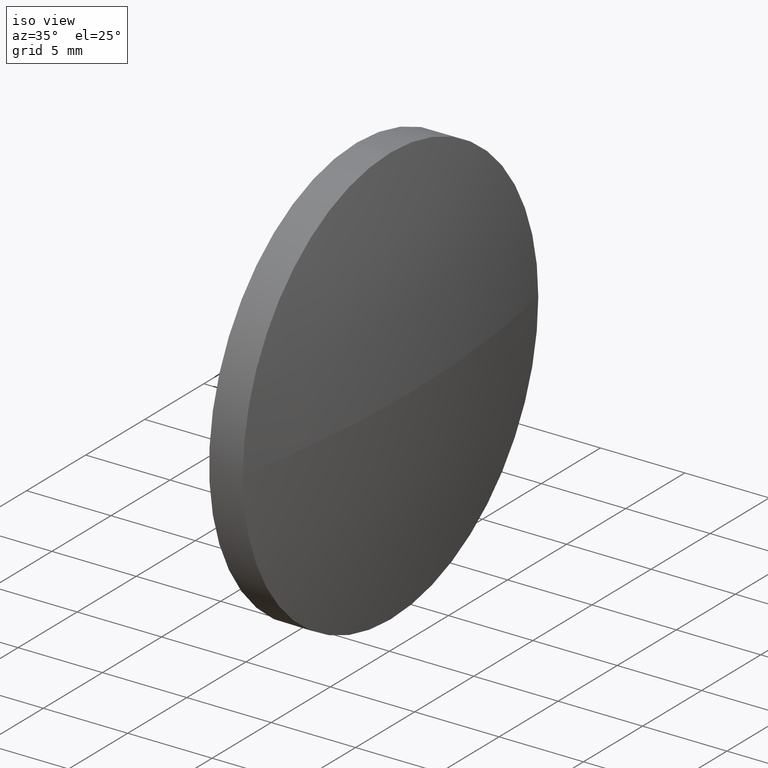
[diagram: clean part render]
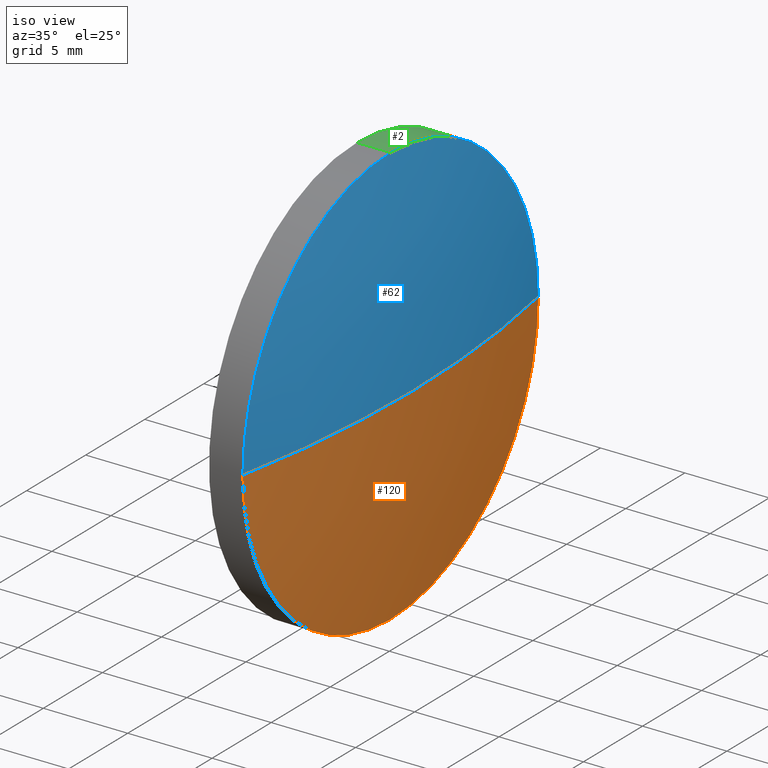
[diagram: same view with three faces highlighted in distinct colors, each labeled with its STEP entity id]
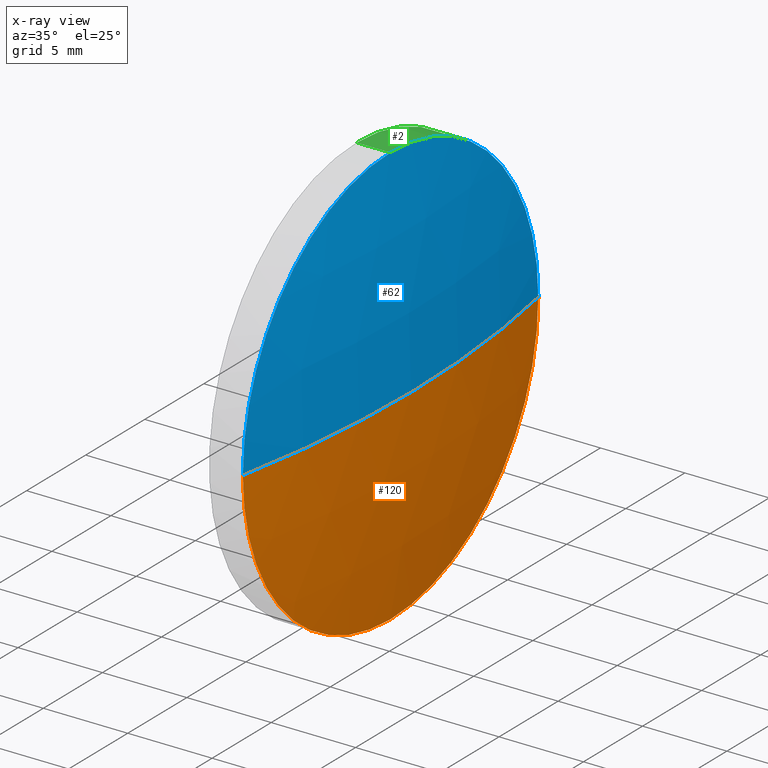
[diagram: x-ray of the same camera — body ghosted, the three highlighted faces saturated]
A machine part, iso view with three faces highlighted in distinct colors.
The next image is the same camera in x-ray (body ghosted, the three faces saturated) — at least one of them is partly hidden behind the body in this view.
Their STEP definitions:

[orange] entity #120 — the highlighted spherical surface has radius 64.6469 mm.
#5 = CARTESIAN_POINT ( 'NONE',  ( 448.6061647457008200, 82.09384113862540700, 0.0000000000000000000 ) ) ;
#8 = ORIENTED_EDGE ( 'NONE', *, *, #147, .F. ) ;
#12 = FACE_OUTER_BOUND ( 'NONE', #30, .T. ) ;
#18 = DIRECTION ( 'NONE',  ( 0.0000000000000000000, 0.0000000000000000000, 1.000000000000000000 ) ) ;
#19 = AXIS2_PLACEMENT_3D ( 'NONE', #138, #47, #153 ) ;
#20 = CIRCLE ( 'NONE', #133, 64.64688524590202700 ) ;
#26 = CARTESIAN_POINT ( 'NONE',  ( 385.1792794997987800, 82.09384113862537900, 0.0000000000000000000 ) ) ;
#29 = CIRCLE ( 'NONE', #130, 12.50000000000001100 ) ;
#30 = EDGE_LOOP ( 'NONE', ( #164, #74, #118, #8 ) ) ;
#38 = VERTEX_POINT ( 'NONE', #106 ) ;
#47 = DIRECTION ( 'NONE',  ( -0.0000000000000000000, 0.0000000000000000000, 1.000000000000000000 ) ) ;
#52 = SPHERICAL_SURFACE ( 'NONE', #99, 64.64688524590201300 ) ;
#53 = EDGE_CURVE ( 'NONE', #155, #127, #104, .T. ) ;
#69 = DIRECTION ( 'NONE',  ( -1.000000000000000000, -0.0000000000000000000, -0.0000000000000000000 ) ) ;
#70 = CARTESIAN_POINT ( 'NONE',  ( 385.1792794997987800, 82.09384113862537900, 0.0000000000000000000 ) ) ;
#71 = DIRECTION ( 'NONE',  ( 0.0000000000000000000, 0.0000000000000000000, 1.000000000000000000 ) ) ;
#74 = ORIENTED_EDGE ( 'NONE', *, *, #81, .T. ) ;
#77 = CARTESIAN_POINT ( 'NONE',  ( 449.8261647457007900, 82.09384113862537900, 0.0000000000000000000 ) ) ;
#80 = VERTEX_POINT ( 'NONE', #86 ) ;
#81 = EDGE_CURVE ( 'NONE', #155, #38, #20, .T. ) ;
#83 = DIRECTION ( 'NONE',  ( 0.0000000000000000000, 1.000000000000000000, 1.224646799147353000E-016 ) ) ;
#86 = CARTESIAN_POINT ( 'NONE',  ( 448.6061647457008200, 82.09384113862540700, -12.50000000000001100 ) ) ;
#87 = AXIS2_PLACEMENT_3D ( 'NONE', #184, #69, #71 ) ;
#94 = DIRECTION ( 'NONE',  ( 0.0000000000000000000, 1.000000000000000000, 0.0000000000000000000 ) ) ;
#99 = AXIS2_PLACEMENT_3D ( 'NONE', #26, #163, #94 ) ;
#103 = DIRECTION ( 'NONE',  ( -1.000000000000000000, -0.0000000000000000000, -0.0000000000000000000 ) ) ;
#104 = CIRCLE ( 'NONE', #19, 64.64688524590201300 ) ;
#106 = CARTESIAN_POINT ( 'NONE',  ( 448.6061647457008200, 69.59384113862536500, -1.530808498934193100E-015 ) ) ;
#118 = ORIENTED_EDGE ( 'NONE', *, *, #174, .F. ) ;
#120 = ADVANCED_FACE ( 'NONE', ( #12 ), #52, .T. ) ;
#127 = VERTEX_POINT ( 'NONE', #145 ) ;
#130 = AXIS2_PLACEMENT_3D ( 'NONE', #5, #103, #18 ) ;
#133 = AXIS2_PLACEMENT_3D ( 'NONE', #70, #170, #83 ) ;
#138 = CARTESIAN_POINT ( 'NONE',  ( 385.1792794997987800, 82.09384113862537900, 0.0000000000000000000 ) ) ;
#145 = CARTESIAN_POINT ( 'NONE',  ( 448.6061647457008200, 94.59384113862542200, 0.0000000000000000000 ) ) ;
#147 = EDGE_CURVE ( 'NONE', #127, #80, #29, .T. ) ;
#150 = CIRCLE ( 'NONE', #87, 12.50000000000001100 ) ;
#153 = DIRECTION ( 'NONE',  ( 1.000000000000000000, 0.0000000000000000000, 0.0000000000000000000 ) ) ;
#155 = VERTEX_POINT ( 'NONE', #77 ) ;
#163 = DIRECTION ( 'NONE',  ( -0.0000000000000000000, 0.0000000000000000000, -1.000000000000000000 ) ) ;
#164 = ORIENTED_EDGE ( 'NONE', *, *, #53, .F. ) ;
#170 = DIRECTION ( 'NONE',  ( 0.0000000000000000000, 1.224646799147353200E-016, -1.000000000000000000 ) ) ;
#174 = EDGE_CURVE ( 'NONE', #80, #38, #150, .T. ) ;
#184 = CARTESIAN_POINT ( 'NONE',  ( 448.6061647457008200, 82.09384113862540700, 0.0000000000000000000 ) ) ;

[blue] entity #62 — the highlighted spherical surface has radius 64.6469 mm.
#9 = SPHERICAL_SURFACE ( 'NONE', #162, 64.64688524590201300 ) ;
#19 = AXIS2_PLACEMENT_3D ( 'NONE', #138, #47, #153 ) ;
#20 = CIRCLE ( 'NONE', #133, 64.64688524590202700 ) ;
#21 = DIRECTION ( 'NONE',  ( -0.0000000000000000000, 0.0000000000000000000, -1.000000000000000000 ) ) ;
#22 = AXIS2_PLACEMENT_3D ( 'NONE', #25, #43, #28 ) ;
#23 = DIRECTION ( 'NONE',  ( -1.000000000000000000, -0.0000000000000000000, -0.0000000000000000000 ) ) ;
#25 = CARTESIAN_POINT ( 'NONE',  ( 448.6061647457008200, 82.09384113862540700, 0.0000000000000000000 ) ) ;
#28 = DIRECTION ( 'NONE',  ( 0.0000000000000000000, 0.0000000000000000000, 1.000000000000000000 ) ) ;
#32 = FACE_OUTER_BOUND ( 'NONE', #121, .T. ) ;
#36 = CARTESIAN_POINT ( 'NONE',  ( 448.6061647457008200, 82.09384113862540700, 12.50000000000001100 ) ) ;
#38 = VERTEX_POINT ( 'NONE', #106 ) ;
#43 = DIRECTION ( 'NONE',  ( -1.000000000000000000, -0.0000000000000000000, -0.0000000000000000000 ) ) ;
#45 = ORIENTED_EDGE ( 'NONE', *, *, #53, .T. ) ;
#47 = DIRECTION ( 'NONE',  ( -0.0000000000000000000, 0.0000000000000000000, 1.000000000000000000 ) ) ;
#53 = EDGE_CURVE ( 'NONE', #155, #127, #104, .T. ) ;
#62 = ADVANCED_FACE ( 'NONE', ( #32 ), #9, .T. ) ;
#64 = DIRECTION ( 'NONE',  ( 0.0000000000000000000, 1.000000000000000000, 0.0000000000000000000 ) ) ;
#70 = CARTESIAN_POINT ( 'NONE',  ( 385.1792794997987800, 82.09384113862537900, 0.0000000000000000000 ) ) ;
#73 = CIRCLE ( 'NONE', #183, 12.50000000000001100 ) ;
#75 = ORIENTED_EDGE ( 'NONE', *, *, #165, .F. ) ;
#77 = CARTESIAN_POINT ( 'NONE',  ( 449.8261647457007900, 82.09384113862537900, 0.0000000000000000000 ) ) ;
#81 = EDGE_CURVE ( 'NONE', #155, #38, #20, .T. ) ;
#83 = DIRECTION ( 'NONE',  ( 0.0000000000000000000, 1.000000000000000000, 1.224646799147353000E-016 ) ) ;
#97 = CARTESIAN_POINT ( 'NONE',  ( 448.6061647457008200, 82.09384113862540700, 0.0000000000000000000 ) ) ;
#104 = CIRCLE ( 'NONE', #19, 64.64688524590201300 ) ;
#106 = CARTESIAN_POINT ( 'NONE',  ( 448.6061647457008200, 69.59384113862536500, -1.530808498934193100E-015 ) ) ;
#107 = CARTESIAN_POINT ( 'NONE',  ( 385.1792794997987800, 82.09384113862537900, 0.0000000000000000000 ) ) ;
#121 = EDGE_LOOP ( 'NONE', ( #134, #45, #75, #149 ) ) ;
#127 = VERTEX_POINT ( 'NONE', #145 ) ;
#132 = DIRECTION ( 'NONE',  ( 0.0000000000000000000, 0.0000000000000000000, 1.000000000000000000 ) ) ;
#133 = AXIS2_PLACEMENT_3D ( 'NONE', #70, #170, #83 ) ;
#134 = ORIENTED_EDGE ( 'NONE', *, *, #81, .F. ) ;
#138 = CARTESIAN_POINT ( 'NONE',  ( 385.1792794997987800, 82.09384113862537900, 0.0000000000000000000 ) ) ;
#140 = CIRCLE ( 'NONE', #22, 12.50000000000001100 ) ;
#141 = VERTEX_POINT ( 'NONE', #36 ) ;
#145 = CARTESIAN_POINT ( 'NONE',  ( 448.6061647457008200, 94.59384113862542200, 0.0000000000000000000 ) ) ;
#149 = ORIENTED_EDGE ( 'NONE', *, *, #172, .F. ) ;
#153 = DIRECTION ( 'NONE',  ( 1.000000000000000000, 0.0000000000000000000, 0.0000000000000000000 ) ) ;
#155 = VERTEX_POINT ( 'NONE', #77 ) ;
#162 = AXIS2_PLACEMENT_3D ( 'NONE', #107, #21, #64 ) ;
#165 = EDGE_CURVE ( 'NONE', #141, #127, #140, .T. ) ;
#170 = DIRECTION ( 'NONE',  ( 0.0000000000000000000, 1.224646799147353200E-016, -1.000000000000000000 ) ) ;
#172 = EDGE_CURVE ( 'NONE', #38, #141, #73, .T. ) ;
#183 = AXIS2_PLACEMENT_3D ( 'NONE', #97, #23, #132 ) ;

[green] entity #2 — the highlighted cylindrical surface (partial cylindrical patch) has radius 12.5 mm, axis along (-1, -0, -0).
#1 = CYLINDRICAL_SURFACE ( 'NONE', #61, 12.50000000000001100 ) ;
#2 = ADVANCED_FACE ( 'NONE', ( #181 ), #1, .T. ) ;
#3 = ORIENTED_EDGE ( 'NONE', *, *, #156, .F. ) ;
#5 = CARTESIAN_POINT ( 'NONE',  ( 448.6061647457008200, 82.09384113862540700, 0.0000000000000000000 ) ) ;
#7 = CARTESIAN_POINT ( 'NONE',  ( 446.6061647457008200, 82.09384113862540700, -12.50000000000001100 ) ) ;
#13 = DIRECTION ( 'NONE',  ( -1.000000000000000000, -0.0000000000000000000, -0.0000000000000000000 ) ) ;
#16 = AXIS2_PLACEMENT_3D ( 'NONE', #113, #66, #117 ) ;
#18 = DIRECTION ( 'NONE',  ( 0.0000000000000000000, 0.0000000000000000000, 1.000000000000000000 ) ) ;
#22 = AXIS2_PLACEMENT_3D ( 'NONE', #25, #43, #28 ) ;
#25 = CARTESIAN_POINT ( 'NONE',  ( 448.6061647457008200, 82.09384113862540700, 0.0000000000000000000 ) ) ;
#28 = DIRECTION ( 'NONE',  ( 0.0000000000000000000, 0.0000000000000000000, 1.000000000000000000 ) ) ;
#29 = CIRCLE ( 'NONE', #130, 12.50000000000001100 ) ;
#34 = VECTOR ( 'NONE', #13, 1000.000000000000000 ) ;
#36 = CARTESIAN_POINT ( 'NONE',  ( 448.6061647457008200, 82.09384113862540700, 12.50000000000001100 ) ) ;
#39 = CARTESIAN_POINT ( 'NONE',  ( 441.8641335038109300, 82.09384113862540700, 0.0000000000000000000 ) ) ;
#40 = ORIENTED_EDGE ( 'NONE', *, *, #147, .T. ) ;
#41 = VECTOR ( 'NONE', #126, 1000.000000000000000 ) ;
#42 = EDGE_CURVE ( 'NONE', #141, #148, #78, .T. ) ;
#43 = DIRECTION ( 'NONE',  ( -1.000000000000000000, -0.0000000000000000000, -0.0000000000000000000 ) ) ;
#49 = ORIENTED_EDGE ( 'NONE', *, *, #179, .T. ) ;
#54 = CARTESIAN_POINT ( 'NONE',  ( 441.8641335038109300, 82.09384113862540700, -12.50000000000001100 ) ) ;
#61 = AXIS2_PLACEMENT_3D ( 'NONE', #39, #176, #79 ) ;
#66 = DIRECTION ( 'NONE',  ( -1.000000000000000000, -0.0000000000000000000, -0.0000000000000000000 ) ) ;
#68 = ORIENTED_EDGE ( 'NONE', *, *, #165, .T. ) ;
#78 = LINE ( 'NONE', #154, #41 ) ;
#79 = DIRECTION ( 'NONE',  ( 0.0000000000000000000, 0.0000000000000000000, 1.000000000000000000 ) ) ;
#80 = VERTEX_POINT ( 'NONE', #86 ) ;
#84 = EDGE_LOOP ( 'NONE', ( #40, #49, #3, #112, #68 ) ) ;
#86 = CARTESIAN_POINT ( 'NONE',  ( 448.6061647457008200, 82.09384113862540700, -12.50000000000001100 ) ) ;
#103 = DIRECTION ( 'NONE',  ( -1.000000000000000000, -0.0000000000000000000, -0.0000000000000000000 ) ) ;
#110 = LINE ( 'NONE', #54, #34 ) ;
#112 = ORIENTED_EDGE ( 'NONE', *, *, #42, .F. ) ;
#113 = CARTESIAN_POINT ( 'NONE',  ( 446.6061647457008200, 82.09384113862540700, 0.0000000000000000000 ) ) ;
#115 = VERTEX_POINT ( 'NONE', #7 ) ;
#117 = DIRECTION ( 'NONE',  ( 0.0000000000000000000, 0.0000000000000000000, 1.000000000000000000 ) ) ;
#126 = DIRECTION ( 'NONE',  ( -1.000000000000000000, -0.0000000000000000000, -0.0000000000000000000 ) ) ;
#127 = VERTEX_POINT ( 'NONE', #145 ) ;
#130 = AXIS2_PLACEMENT_3D ( 'NONE', #5, #103, #18 ) ;
#136 = CARTESIAN_POINT ( 'NONE',  ( 446.6061647457008200, 82.09384113862540700, 12.50000000000001100 ) ) ;
#140 = CIRCLE ( 'NONE', #22, 12.50000000000001100 ) ;
#141 = VERTEX_POINT ( 'NONE', #36 ) ;
#145 = CARTESIAN_POINT ( 'NONE',  ( 448.6061647457008200, 94.59384113862542200, 0.0000000000000000000 ) ) ;
#147 = EDGE_CURVE ( 'NONE', #127, #80, #29, .T. ) ;
#148 = VERTEX_POINT ( 'NONE', #136 ) ;
#154 = CARTESIAN_POINT ( 'NONE',  ( 441.8641335038109300, 82.09384113862540700, 12.50000000000001100 ) ) ;
#156 = EDGE_CURVE ( 'NONE', #148, #115, #185, .T. ) ;
#165 = EDGE_CURVE ( 'NONE', #141, #127, #140, .T. ) ;
#176 = DIRECTION ( 'NONE',  ( -1.000000000000000000, -0.0000000000000000000, -0.0000000000000000000 ) ) ;
#179 = EDGE_CURVE ( 'NONE', #80, #115, #110, .T. ) ;
#181 = FACE_OUTER_BOUND ( 'NONE', #84, .T. ) ;
#185 = CIRCLE ( 'NONE', #16, 12.50000000000001100 ) ;